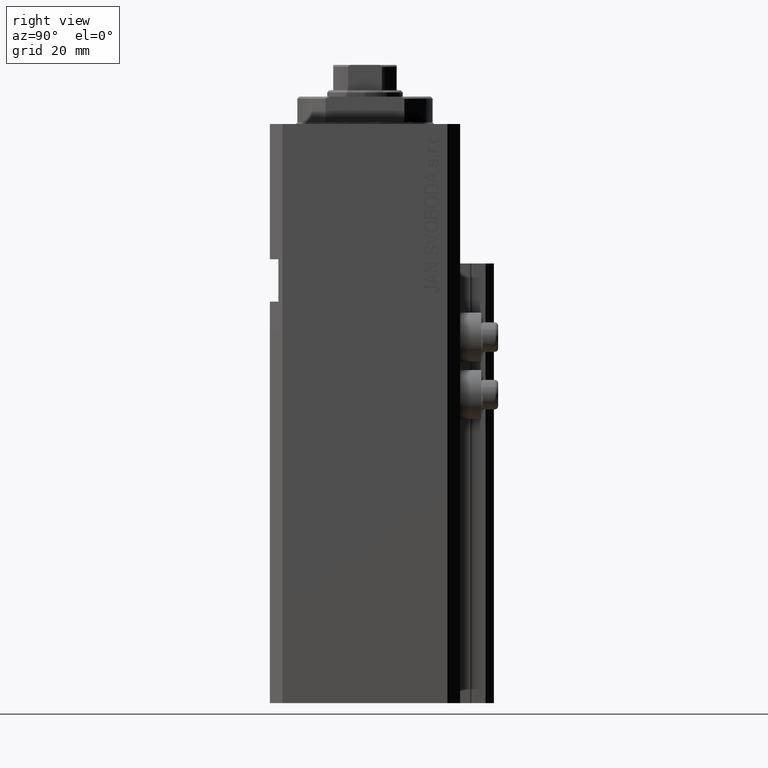
[diagram: clean part render]
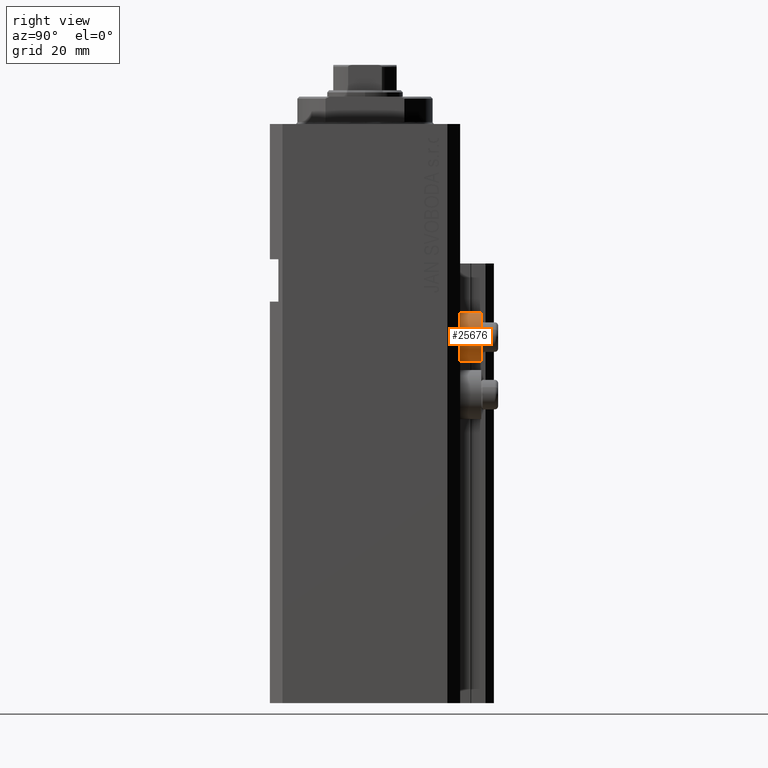
[diagram: same view with one face highlighted and labeled with its STEP entity id]
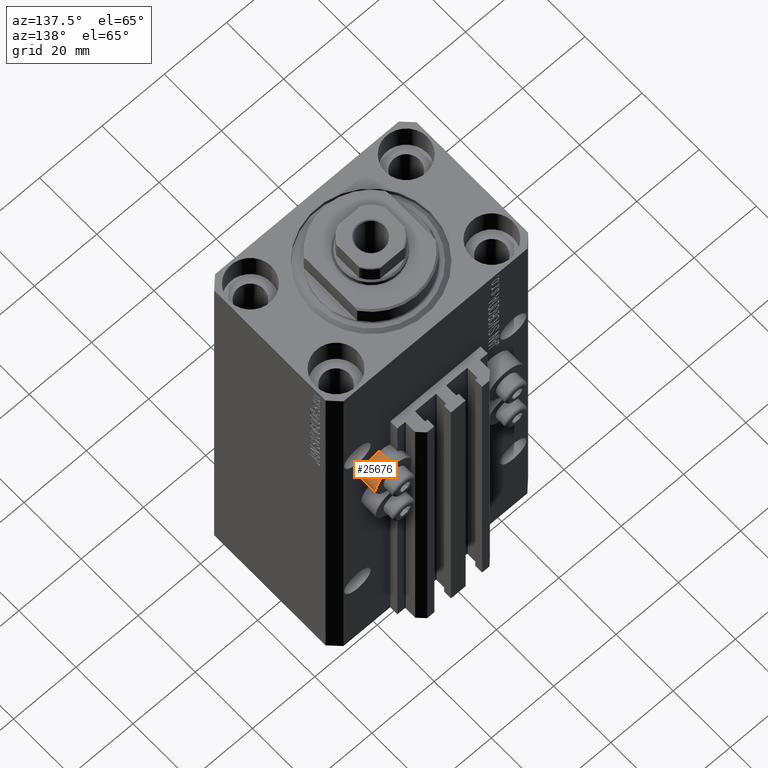
[diagram: same view with one face highlighted and labeled with its STEP entity id]
A machine part, right view. The second image highlights one B-rep face of the part: STEP entity #25676.
A second angle (auxiliary view) of the same face is appended — the face is thin or edge-on in the first view.
In plain terms, the highlighted cylindrical surface (edge-blend (fillet) strip) has radius 5.8 mm, axis along (0, 1, 0).
Its self-contained STEP definition (entity closure, byte-faithful):
#662 = ORIENTED_EDGE ( 'NONE', *, *, #35622, .F. ) ;
#1114 = DIRECTION ( 'NONE',  ( 0.000000000000000000, 0.000000000000000000, 1.000000000000000000 ) ) ;
#1243 = ORIENTED_EDGE ( 'NONE', *, *, #4420, .F. ) ;
#1502 = DIRECTION ( 'NONE',  ( -0.000000000000000000, -1.000000000000000000, -0.000000000000000000 ) ) ;
#1576 = DIRECTION ( 'NONE',  ( -0.000000000000000000, -1.000000000000000000, -0.000000000000000000 ) ) ;
#1998 = CARTESIAN_POINT ( 'NONE',  ( 18.00000000000000355, 22.49999999999951328, -44.60000000000000142 ) ) ;
#3732 = VECTOR ( 'NONE', #14440, 1000.000000000000000 ) ;
#4420 = EDGE_CURVE ( 'NONE', #4708, #44671, #34454, .T. ) ;
#4708 = VERTEX_POINT ( 'NONE', #16700 ) ;
#5648 = AXIS2_PLACEMENT_3D ( 'NONE', #20307, #1502, #27526 ) ;
#5928 = DIRECTION ( 'NONE',  ( 0.000000000000000000, 0.000000000000000000, 1.000000000000000000 ) ) ;
#6167 = DIRECTION ( 'NONE',  ( 0.000000000000000000, 1.000000000000000000, 0.000000000000000000 ) ) ;
#8159 = EDGE_CURVE ( 'NONE', #4708, #31637, #28700, .T. ) ;
#12917 = CARTESIAN_POINT ( 'NONE',  ( 18.00000000000000355, 22.49999999999951328, -50.39999999999999858 ) ) ;
#14440 = DIRECTION ( 'NONE',  ( 0.000000000000000000, 1.000000000000000000, 0.000000000000000000 ) ) ;
#16700 = CARTESIAN_POINT ( 'NONE',  ( 18.00000000000000355, 22.49999999999951328, -56.20000000000000284 ) ) ;
#20307 = CARTESIAN_POINT ( 'NONE',  ( 18.00000000000000355, 27.49999999996051514, -50.39999999999999858 ) ) ;
#21450 = VECTOR ( 'NONE', #32561, 1000.000000000000000 ) ;
#22151 = EDGE_CURVE ( 'NONE', #31637, #42662, #31786, .T. ) ;
#24427 = AXIS2_PLACEMENT_3D ( 'NONE', #12917, #1576, #1114 ) ;
#25676 = ADVANCED_FACE ( 'NONE', ( #43755 ), #43035, .T. ) ;
#27526 = DIRECTION ( 'NONE',  ( 0.000000000000000000, 0.000000000000000000, 1.000000000000000000 ) ) ;
#28700 = LINE ( 'NONE', #28936, #21450 ) ;
#28936 = CARTESIAN_POINT ( 'NONE',  ( 18.00000000000000355, 27.49999999996051514, -56.20000000000000284 ) ) ;
#30298 = ORIENTED_EDGE ( 'NONE', *, *, #8159, .T. ) ;
#31637 = VERTEX_POINT ( 'NONE', #43600 ) ;
#31786 = CIRCLE ( 'NONE', #5648, 5.799999999999999822 ) ;
#32561 = DIRECTION ( 'NONE',  ( 0.000000000000000000, 1.000000000000000000, 0.000000000000000000 ) ) ;
#34454 = CIRCLE ( 'NONE', #24427, 5.799999999999999822 ) ;
#35622 = EDGE_CURVE ( 'NONE', #44671, #42662, #39977, .T. ) ;
#36382 = CARTESIAN_POINT ( 'NONE',  ( 18.00000000000000355, 27.49999999996051514, -44.60000000000000142 ) ) ;
#36712 = CARTESIAN_POINT ( 'NONE',  ( 18.00000000000000355, 27.49999999996051514, -44.60000000000000142 ) ) ;
#37264 = ORIENTED_EDGE ( 'NONE', *, *, #22151, .T. ) ;
#39977 = LINE ( 'NONE', #36382, #3732 ) ;
#42507 = EDGE_LOOP ( 'NONE', ( #1243, #30298, #37264, #662 ) ) ;
#42662 = VERTEX_POINT ( 'NONE', #36712 ) ;
#43035 = CYLINDRICAL_SURFACE ( 'NONE', #44254, 5.799999999999999822 ) ;
#43600 = CARTESIAN_POINT ( 'NONE',  ( 18.00000000000000355, 27.49999999996051514, -56.20000000000000284 ) ) ;
#43755 = FACE_OUTER_BOUND ( 'NONE', #42507, .T. ) ;
#44254 = AXIS2_PLACEMENT_3D ( 'NONE', #47153, #6167, #5928 ) ;
#44671 = VERTEX_POINT ( 'NONE', #1998 ) ;
#47153 = CARTESIAN_POINT ( 'NONE',  ( 18.00000000000000355, 27.49999999996051514, -50.39999999999999858 ) ) ;